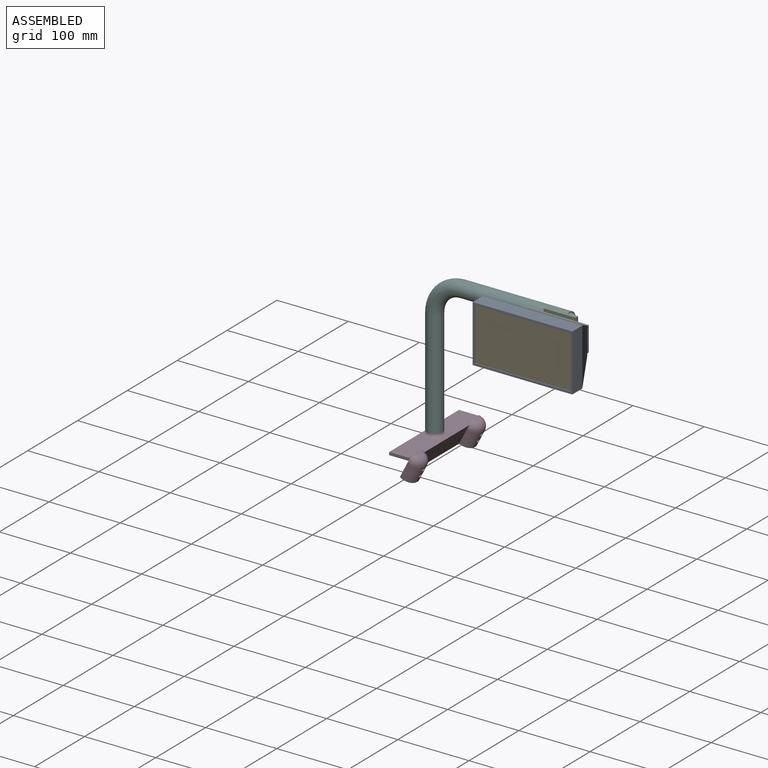
[diagram: assembled view]
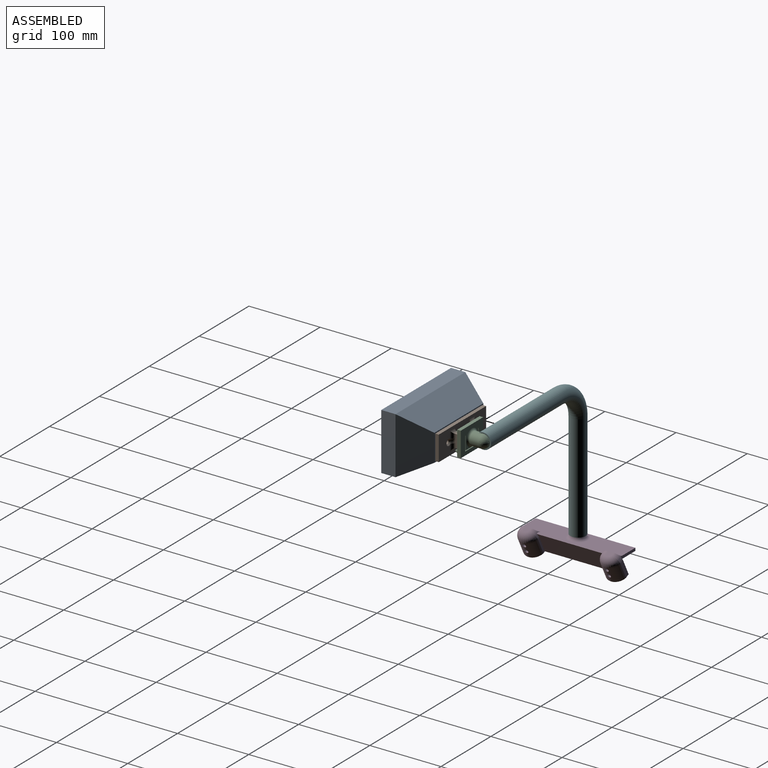
[diagram: assembled view, second angle]
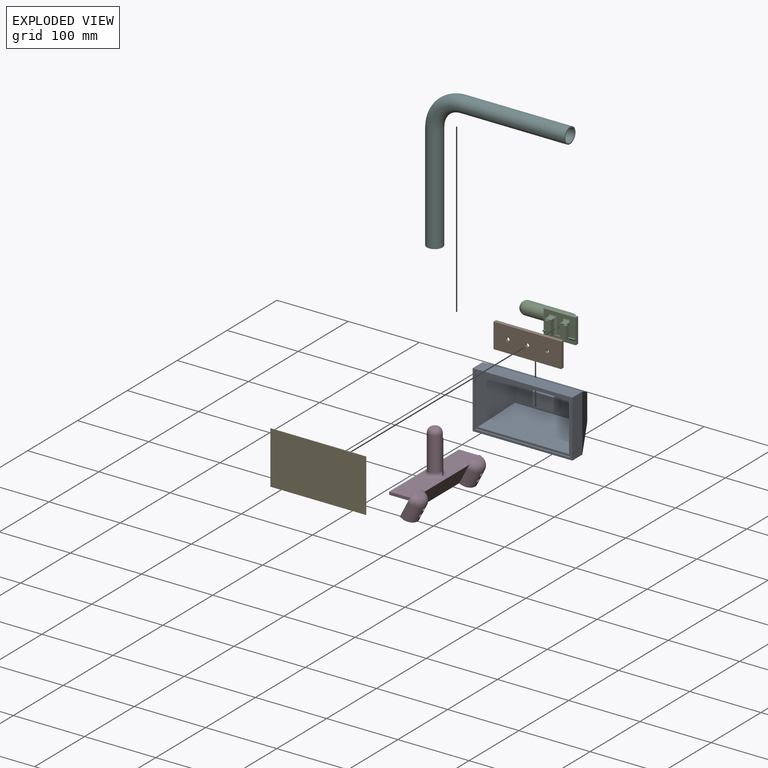
[diagram: exploded view]
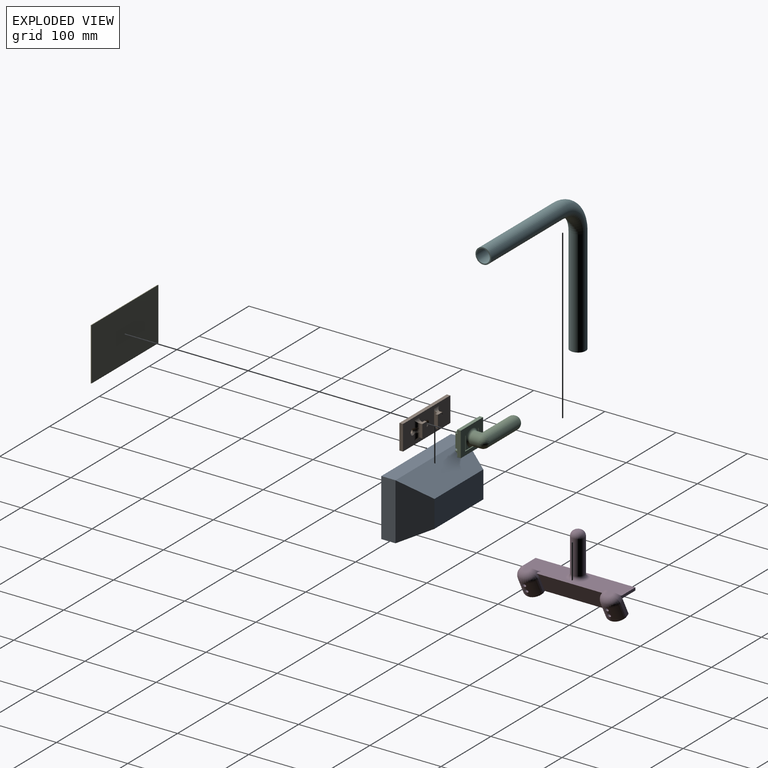
[diagram: exploded view, second angle]
ASSEMBLY  parts=6 mates=6
PART A: 25 faces, bbox 140x60x80 mm
  f0: plane 134x74mm, normal (0,-1,0), area 1212mm2, adj f11,f12,f13,f14,f16,f17,f18,f19
  f1: plane 140x80mm, normal (0,-1,0), area 1284mm2, adj f2,f3,f4,f5,f11,f12,f13,f14
  f2: plane 140x20mm, normal (0,0,-1), area 2800mm2, adj f1,f3,f5,f8
  f3: plane 80x20mm, normal (1,0,0), area 1600mm2, adj f1,f2,f4,f7
  f4: plane 140x20mm, normal (0,0,1), area 2800mm2, adj f1,f3,f5,f9
  f5: plane 80x20mm, normal (-1,0,0), area 1600mm2, adj f1,f2,f4,f10
  f6: plane 98x38mm, normal (0,1,0), area 3724mm2, adj f7,f8,f9,f10
  f7: plane 80x40mm, normal (0.89,0.46,0), area 2665.5mm2, adj f3,f6,f8,f9
  f8: plane 140x40mm, normal (0,0.46,-0.89), area 5376.1mm2, adj f2,f6,f7,f10
  f9: plane 140x40mm, normal (0,0.46,0.89), area 5376.1mm2, adj f4,f6,f7,f10
  f10: plane 80x40mm, normal (-0.89,0.46,0), area 2665.5mm2, adj f5,f6,f8,f9
  f11: plane 134x2mm, normal (0,0,1), area 268mm2, adj f0,f1,f12,f14
  f12: plane 74x2mm, normal (-1,0,0), area 148mm2, adj f0,f1,f11,f13
  f13: plane 134x2mm, normal (0,0,-1), area 268mm2, adj f0,f1,f12,f14
  f14: plane 74x2mm, normal (1,0,0), area 148mm2, adj f0,f1,f11,f13
  f15: plane 100x40mm, normal (0,-1,0), area 3400mm2, adj f16,f17,f18,f19,f20,f21,f22,f23
  f16: plane 128x54mm, normal (0,-0.25,0.97), area 6359.5mm2, adj f0,f15,f18,f19
  f17: plane 128x54mm, normal (0,-0.25,-0.97), area 6359.5mm2, adj f0,f15,f18,f19
  f18: plane 68x54mm, normal (-0.97,-0.25,0), area 3012.4mm2, adj f0,f15,f16,f17
  f19: plane 68x54mm, normal (0.97,-0.25,0), area 3012.4mm2, adj f0,f15,f16,f17
  f20: plane 30x15mm, normal (0,0,-1), area 450mm2, adj f15,f21,f23,f24
  f21: plane 20x15mm, normal (1,0,0), area 300mm2, adj f15,f20,f22,f24
  f22: plane 30x15mm, normal (0,0,1), area 450mm2, adj f15,f21,f23,f24
  f23: plane 20x15mm, normal (-1,0,0), area 300mm2, adj f15,f20,f22,f24
  f24: plane 30x20mm, normal (0,-1,0), area 600mm2, adj f20,f21,f22,f23
PART B: 36 faces, bbox 95x13x35 mm
  f0: plane 18x9mm, normal (0,-1,0), area 162mm2, adj f7,f9,f29,f31
  f1: plane 18x3.4mm, normal (1,0,0), area 61.2mm2, adj f4,f6,f28,f30
  f2: plane 27x4.6mm, normal (1,0,0), area 91.5mm2, adj f4,f12,f28,f30,f33,f35
  f3: plane 18x3.42mm, normal (-1,0,0), area 55.5mm2, adj f5,f6,f26,f27,f28,f30
  f4: plane 18x4mm, normal (0,1,0), area 72mm2, adj f1,f2,f28,f30
  f5: cylinder r=5mm len=9.76mm, axis (0,0,-1), area 53.4mm2, adj f3,f12,f27,f30,f33
  f6: plane 18x9mm, normal (0,-1,0), area 162mm2, adj f1,f3,f28,f30
  f7: plane 18x3.5mm, normal (-1,0,0), area 63mm2, adj f0,f10,f29,f31
  f8: plane 27x4.5mm, normal (-1,0,0), area 89.7mm2, adj f10,f12,f32,f34
  f9: plane 18x3.42mm, normal (1,0,0), area 55.5mm2, adj f0,f11,f24,f25,f29,f31
  f10: plane 18x4mm, normal (0,1,0), area 72mm2, adj f7,f8,f29,f31
  f11: cylinder r=5mm len=9.76mm, axis (0,0,1), area 53.4mm2, adj f9,f12,f25,f29,f34
  f12: plane 95x35mm, normal (0,-1,0), area 2615.2mm2, adj f2,f5,f8,f11,f13,f14,f15,f19
  f13: plane 35x5mm, normal (1,0,0), area 175mm2, adj f12,f14,f19,f20
  f14: plane 95x5mm, normal (0,0,1), area 475mm2, adj f12,f13,f15,f20
  f15: plane 35x5mm, normal (-1,0,0), area 175mm2, adj f12,f14,f19,f20
  f16: cylinder r=2.5mm len=5mm, axis (0,-1,0), area 47.1mm2, adj f20,f22
  f17: cylinder r=2.5mm len=5mm, axis (0,-1,0), area 47.1mm2, adj f20,f23
  f18: cylinder r=2.5mm len=5mm, axis (0,-1,0), area 47.1mm2, adj f20,f21
  f19: plane 95x5mm, normal (0,0,-1), area 475mm2, adj f12,f13,f15,f20
  f20: plane 95x35mm, normal (0,1,0), area 3266.1mm2, adj f13,f14,f15,f16,f17,f18,f19
  f21: cone r=2.5mm half-angle=45deg, axis (0,-1,0), area 62.2mm2, adj f12,f18
  f22: cone r=2.5mm half-angle=45deg, axis (0,-1,0), area 62.2mm2, adj f12,f16,f25
  f23: cone r=2.5mm half-angle=45deg, axis (0,-1,0), area 62.2mm2, adj f12,f17,f27
  f24: cylinder r=5mm len=9.76mm, axis (0,0,1), area 53.4mm2, adj f9,f12,f25,f31,f32
  f25: bspline ~8.33x5.21mm, area 48.4mm2, adj f9,f11,f22,f24
  f26: cylinder r=5mm len=9.76mm, axis (0,0,-1), area 53.4mm2, adj f3,f12,f27,f28,f35
  f27: bspline ~8.33x5.21mm, area 48.4mm2, adj f3,f5,f23,f26
  f28: plane 9.03x3.5mm, normal (0,0,1), area 31.1mm2, adj f1,f2,f3,f4,f6,f26,f35
  f29: plane 9.03x3.5mm, normal (0,0,1), area 31.5mm2, adj f0,f7,f9,f10,f11,f34
  f30: plane 9.03x3.5mm, normal (0,0,-1), area 31.1mm2, adj f1,f2,f3,f4,f5,f6,f33
  f31: plane 9.03x3.5mm, normal (0,0,-1), area 31.5mm2, adj f0,f7,f9,f10,f24,f32
  f32: cylinder r=4.5mm len=10mm, axis (1,0,0), area 48.9mm2, adj f8,f12,f24,f31
  f33: cylinder r=4.5mm len=10mm, axis (1,0,0), area 48.9mm2, adj f2,f5,f12,f30
  f34: cylinder r=4.5mm len=10mm, axis (-1,0,0), area 48.9mm2, adj f8,f11,f12,f29
  f35: cylinder r=4.5mm len=10mm, axis (-1,0,0), area 48.9mm2, adj f2,f12,f26,f28
PART C: 52 faces, bbox 91.7x38.2x35.1 mm
  f0: plane 45x35mm, normal (0,1,0), area 1055.3mm2, adj f9,f10,f11,f12,f15,f20,f21,f22
  f1: plane 21x8mm, normal (0,-1,0), area 162.4mm2, adj f2,f7,f15,f17,f19,f39,f40,f41
  f2: plane 8x5.1mm, normal (0,0,1), area 40.8mm2, adj f1,f17,f41,f50
  f3: plane 19x4mm, normal (1,0,0), area 76mm2, adj f4,f15,f16,f36
  f4: plane 19x4mm, normal (0,1,0), area 76mm2, adj f3,f8,f15,f36
  f5: plane 45x5.75mm, normal (0,-1,0), area 232.2mm2, adj f9,f10,f12,f20,f27,f28,f29,f30
  f6: plane 45x28.75mm, normal (0,-1,0), area 859.3mm2, adj f7,f8,f10,f11,f12,f15,f20,f21
  f7: plane 20.4x8.1mm, normal (-1,0,0), area 89.2mm2, adj f1,f6,f15,f18,f39,f40
  f8: plane 20.45x8.1mm, normal (1,0,0), area 89.6mm2, adj f4,f6,f15,f16,f36,f37
  f9: plane 45x5mm, normal (0,0,-1), area 225mm2, adj f0,f5,f10,f12
  f10: plane 35x8mm, normal (1,0,0), area 179.5mm2, adj f0,f5,f6,f9,f11,f33,f34
  f11: plane 45x5mm, normal (0,0,1), area 225mm2, adj f0,f6,f10,f12
  f12: plane 35x8mm, normal (-1,0,0), area 179.5mm2, adj f0,f5,f6,f9,f11,f31,f32,f35
  f13: plane 8x5.1mm, normal (0,0,1), area 40.8mm2, adj f14,f16,f38,f48
  f14: plane 21x5.1mm, normal (-1,0,0), area 107.1mm2, adj f13,f15,f16,f49
  f15: plane 29.09x13.19mm, normal (0,0,-1), area 220.7mm2, adj f0,f1,f3,f4,f6,f7,f8,f14
  f16: plane 21x8mm, normal (0,-1,0), area 162.2mm2, adj f3,f8,f13,f14,f15,f36,f37,f38
  f17: plane 21x5.1mm, normal (1,0,0), area 107.1mm2, adj f1,f2,f15,f51
  f18: plane 19x4mm, normal (0,1,0), area 76mm2, adj f7,f15,f19,f39
  f19: plane 19x4mm, normal (-1,0,0), area 76mm2, adj f1,f15,f18,f39
  f20: plane 19.73x8mm, normal (-1,0,0), area 99.5mm2, adj f0,f5,f6,f21,f30,f33,f34
  f21: cylinder r=0.5mm len=5mm, axis (0,-1,0), area 7.9mm2, adj f0,f6,f20,f22
  f22: plane 18x5mm, normal (1,0,0), area 90mm2, adj f0,f6,f21,f23
  f23: cylinder r=0.5mm len=5mm, axis (0,-1,0), area 3.9mm2, adj f0,f6,f15,f22
  f24: cylinder r=0.5mm len=5mm, axis (0,-1,0), area 3.9mm2, adj f0,f6,f15,f25
  f25: plane 18x5mm, normal (-1,0,0), area 90mm2, adj f0,f6,f24,f26
  f26: cylinder r=0.5mm len=5mm, axis (0,-1,0), area 7.9mm2, adj f0,f6,f25,f27
  f27: plane 19.74x8mm, normal (1,0,0), area 99.5mm2, adj f0,f5,f6,f26,f28,f31,f32,f35
  f28: cylinder r=0.5mm len=5mm, axis (0,-1,0), area 3.9mm2, adj f0,f5,f27,f29
  f29: plane 26x5mm, normal (0,0,1), area 130mm2, adj f0,f5,f28,f30
  f30: cylinder r=0.5mm len=5mm, axis (0,-1,0), area 3.9mm2, adj f0,f5,f20,f29
  f31: plane 9x3mm, normal (0,0,1), area 27mm2, adj f6,f12,f27,f32
  f32: plane 9x0.01mm, normal (0,-1,0), area 0.1mm2, adj f12,f27,f31,f35
  f33: plane 9x3mm, normal (0,0,1), area 27mm2, adj f6,f10,f20,f34
  f34: plane 9x3mm, normal (0,-0.71,-0.71), area 38.2mm2, adj f5,f10,f20,f33
  f35: plane 9x3mm, normal (0,-0.71,-0.71), area 38.2mm2, adj f5,f12,f27,f32
  f36: plane 4x4mm, normal (0,0,1), area 16mm2, adj f3,f4,f8,f16
  f37: plane 8.1x4mm, normal (0,0,-1), area 32.4mm2, adj f6,f8,f16,f38
  f38: plane 8.1x3.55mm, normal (1,0,0), area 6.4mm2, adj f6,f13,f16,f37,f48
  f39: plane 4x4mm, normal (0,0,1), area 16mm2, adj f1,f7,f18,f19
  f40: plane 8.1x4mm, normal (0,0,-1), area 32.4mm2, adj f1,f6,f7,f41
  f41: plane 8.1x3.6mm, normal (-1,0,0), area 6.8mm2, adj f1,f2,f6,f40,f50
  f42: sphere r=9.1mm, area 260.2mm2, adj f43,f44
  f43: cylinder r=9.1mm len=18.2mm, axis (0,-1,0), area 572.4mm2, adj f42,f44,f46,f47
  f44: cylinder r=9.1mm len=60mm, axis (1,0,0), area 3265mm2, adj f42,f43,f45
  f45: sphere r=9.1mm, area 520.3mm2, adj f44
  f46: torus R=12.1mm, axis (0,-1,0), area 265.5mm2, adj f0,f43,f47
  f47: bspline ~10.45x3.38mm, area 31.1mm2, adj f15,f43,f46
  f48: cylinder r=3mm len=11mm, axis (-1,0,0), area 42.8mm2, adj f6,f13,f38,f49
  f49: cylinder r=3mm len=24mm, axis (0,0,-1), area 104.1mm2, adj f6,f14,f15,f48
  f50: cylinder r=3mm len=11mm, axis (-1,0,0), area 42.8mm2, adj f2,f6,f41,f51
  f51: cylinder r=3mm len=24mm, axis (0,0,1), area 104.1mm2, adj f6,f15,f17,f50
PART D: 60 faces, bbox 144.3x63.1x77.7 mm
  f0: plane 144.1x28.36mm, normal (0,-1,0), area 2354.2mm2, adj f9,f10,f17,f20,f21,f22,f23,f38
  f1: plane 91.9x2.5mm, normal (0,0,1), area 229.8mm2, adj f7,f36,f39,f44
  f2: cylinder r=10.71mm len=20.1mm, axis (0,0,1), area 333.2mm2, adj f5,f16,f25,f28,f42
  f3: cylinder r=14.57mm len=28.1mm, axis (0,0,1), area 872mm2, adj f8,f9,f17,f24,f25,f40
  f4: plane 20.1x13.5mm, normal (0,1,0), area 252.7mm2, adj f5,f16,f23,f27,f42
  f5: plane 13.5x3mm, normal (1,0,0), area 40.5mm2, adj f2,f4,f26,f42
  f6: plane 24x3.28mm, normal (-1,0,0), area 78.7mm2, adj f7,f14,f17,f36
  f7: plane 91.9x30mm, normal (0,1,0), area 2644.6mm2, adj f1,f6,f8,f17,f36,f39
  f8: plane 24x3.28mm, normal (1,0,0), area 78.7mm2, adj f3,f7,f17,f39
  f9: plane 24x5.78mm, normal (-1,0,0), area 138.7mm2, adj f0,f3,f17,f41
  f10: plane 24x5.78mm, normal (1,0,0), area 138.7mm2, adj f0,f14,f17,f38
  f11: plane 20.1x13.5mm, normal (0,1,0), area 252.7mm2, adj f12,f15,f20,f31,f43
  f12: plane 13.5x3mm, normal (1,0,0), area 40.5mm2, adj f11,f13,f33,f43
  f13: cylinder r=10.71mm len=20.1mm, axis (0,0,1), area 333.2mm2, adj f12,f15,f18,f32,f43
  f14: cylinder r=14.57mm len=28.1mm, axis (0,0,1), area 872mm2, adj f6,f10,f17,f18,f19,f37
  f15: plane 13.5x3mm, normal (-1,0,0), area 40.5mm2, adj f11,f13,f30,f43
  f16: plane 13.5x3mm, normal (-1,0,0), area 40.5mm2, adj f2,f4,f29,f42
  f17: plane 144.1x16.5mm, normal (0,0,-1), area 576.3mm2, adj f0,f3,f6,f7,f8,f9,f10,f14
  f18: cylinder r=2.5mm len=5mm, axis (0,-1,0), area 63.5mm2, adj f13,f14,f32
  f19: cylinder r=2.5mm len=5mm, axis (0,-1,0), area 57.8mm2, adj f14,f32
  f20: cylinder r=2.5mm len=5mm, axis (0,-1,0), area 39.3mm2, adj f0,f11,f31
  f21: cylinder r=2.5mm len=5mm, axis (0,-1,0), area 33.7mm2, adj f0,f31
  f22: cylinder r=2.5mm len=5mm, axis (0,-1,0), area 33.7mm2, adj f0,f27
  f23: cylinder r=2.5mm len=5mm, axis (0,-1,0), area 39.3mm2, adj f0,f4,f27
  f24: cylinder r=2.5mm len=5mm, axis (0,-1,0), area 57.8mm2, adj f3,f28
  f25: cylinder r=2.5mm len=5mm, axis (0,-1,0), area 63.5mm2, adj f2,f3,f28
  f26: plane 18x3.94mm, normal (1,0,-0.04), area 62.5mm2, adj f5,f17,f27,f28
  f27: plane 21.74x18.04mm, normal (0,1,-0.04), area 355.9mm2, adj f4,f17,f22,f23,f26,f29
  f28: cone r=11.51mm half-angle=2.5deg, axis (0,0,-1), area 469.1mm2, adj f2,f17,f24,f25,f26,f29
  f29: plane 18x3.94mm, normal (-1,0,-0.04), area 62.5mm2, adj f16,f17,f27,f28
  f30: plane 18x3.94mm, normal (-1,0,-0.04), area 62.5mm2, adj f15,f17,f31,f32
  f31: plane 21.74x18.04mm, normal (0,1,-0.04), area 355.9mm2, adj f11,f17,f20,f21,f30,f33
  f32: cone r=10.71mm half-angle=2.5deg, axis (0,0,-1), area 469.1mm2, adj f13,f17,f18,f19,f30,f33
  f33: plane 18x3.94mm, normal (1,0,-0.04), area 62.5mm2, adj f12,f17,f31,f32
  f34: plane 8.1x6.5mm, normal (0,0,1), area 46.9mm2, adj f36,f37,f38,f53
  f35: plane 8.1x6.5mm, normal (0,0,1), area 46.9mm2, adj f39,f40,f41,f52
  f36: cylinder r=10mm len=10mm, axis (0,-1,0), area 69.9mm2, adj f1,f6,f7,f34,f37,f44,f53
  f37: torus R=4.57mm, axis (0,0,1), area 434.7mm2, adj f14,f34,f36,f38
  f38: cylinder r=10mm len=10mm, axis (0,1,0), area 85.2mm2, adj f0,f10,f34,f37,f47,f53,f58
  f39: cylinder r=10mm len=10mm, axis (0,-1,0), area 69.9mm2, adj f1,f7,f8,f35,f40,f44,f52
  f40: torus R=4.57mm, axis (0,0,1), area 434.7mm2, adj f3,f35,f39,f41
  f41: cylinder r=10mm len=10mm, axis (0,-1,0), area 85.2mm2, adj f0,f9,f35,f40,f48,f52,f57
  f42: plane 20.1x10mm, normal (0,0,-1), area 162.7mm2, adj f2,f4,f5,f16
  f43: plane 20.1x10mm, normal (0,0,-1), area 162.7mm2, adj f11,f12,f13,f15
  f44: plane 140.23x26.86mm, normal (0,-0.45,0.89), area 3357.8mm2, adj f1,f36,f39,f46,f47,f48,f52,f53
  f45: plane 142.31x25.13mm, normal (0,0.45,-0.89), area 2134.1mm2, adj f0,f46,f47,f48,f54,f55,f56,f57
  f46: plane 140.1x3.56mm, normal (0,-0.89,-0.45), area 560.4mm2, adj f44,f45,f47,f48
  f47: plane 25.73x17.18mm, normal (1,0,0), area 112.3mm2, adj f38,f44,f45,f46,f53,f58
  f48: plane 25.73x17.18mm, normal (-1,0,0), area 112.3mm2, adj f41,f44,f45,f46,f52,f57
  f49: cylinder r=9.2mm len=50.68mm, axis (0,0.45,-0.89), area 2745.8mm2, adj f51,f59
  f50: plane 3.4x3.03mm, normal (0,-0.45,0.89), area 9.1mm2, adj f51
  f51: torus R=1.7mm, axis (0,-0.45,0.89), area 479.3mm2, adj f49,f50
  f52: cylinder r=7mm len=25.24mm, axis (-1,0,0), area 160.6mm2, adj f35,f39,f41,f44,f48
  f53: cylinder r=7mm len=25.24mm, axis (-1,0,0), area 160.6mm2, adj f34,f36,f38,f44,f47
  f54: plane 100x15.89mm, normal (0,-0.26,-0.96), area 1648.2mm2, adj f0,f45,f55,f56
  f55: plane 15.89x12.46mm, normal (1,0,0), area 99mm2, adj f0,f45,f54
  f56: plane 15.89x12.46mm, normal (-1,0,0), area 99mm2, adj f0,f45,f54
  f57: cylinder r=1mm len=5mm, axis (0,0,1), area 6.6mm2, adj f0,f41,f45,f48
  f58: cylinder r=1mm len=5mm, axis (0,0,-1), area 6.6mm2, adj f0,f38,f45,f47
  f59: torus R=14.2mm, axis (0,0.45,-0.89), area 543.7mm2, adj f44,f49
PART E: 6 faces, bbox 134x1x74 mm
  f0: plane 134x1mm, normal (0,0,-1), area 134mm2, adj f1,f3,f4,f5
  f1: plane 74x1mm, normal (1,0,0), area 74mm2, adj f0,f2,f4,f5
  f2: plane 134x1mm, normal (0,0,1), area 134mm2, adj f1,f3,f4,f5
  f3: plane 74x1mm, normal (-1,0,0), area 74mm2, adj f0,f2,f4,f5
  f4: plane 134x74mm, normal (0,-1,0), area 9916mm2, adj f0,f1,f2,f3
  f5: plane 134x74mm, normal (0,1,0), area 9916mm2, adj f0,f1,f2,f3
PART F: 8 faces, bbox 22x205.2x205.2 mm
  f0: torus R=40mm, axis (-1,0,0), area 3671.5mm2, adj f2,f5
  f1: torus R=40mm, axis (-1,0,0), area 4342.6mm2, adj f3,f6
  f2: cylinder r=9.3mm len=150mm, axis (0,0,1), area 8765mm2, adj f0,f4
  f3: cylinder r=11mm len=150mm, axis (0,0,1), area 10367.3mm2, adj f1,f4
  f4: plane 22x22mm, normal (0,0,-1), area 108.4mm2, adj f2,f3
  f5: cylinder r=9.3mm len=150mm, axis (0,1,0), area 8765mm2, adj f0,f7
  f6: cylinder r=11mm len=150mm, axis (0,1,0), area 10367.3mm2, adj f1,f7
  f7: plane 22x22mm, normal (0,-1,0), area 108.4mm2, adj f5,f6
PLACE A rot(axis=(0,-1,0),180deg) t=(-15.14,-125.44,-90.44)mm
PLACE B rot(axis=(0,0,-1),180deg) t=(-15.14,-120.44,-90.44)mm
PLACE C rot(axis=(0,0,1),0deg) t=(-14.64,-106.74,-91.19)mm
PLACE D rot(axis=(-0.23,0.23,-0.95),93.1deg) t=(-187.41,-90.84,-287.32)mm
PLACE E rot(axis=(0,0,-1),180deg) t=(-15.14,-184.44,-90.44)mm
PLACE F rot(axis=(0,0,1),90deg) t=(-164.64,-90.84,-91.19)mm
MATE planar F.f5 <-> C.f44  axis (-1,0,0) through (-14.64,-90.84,-91.19)mm
MATE slider F.f5 <-> C.f44  axis (1,0,0) through (-14.64,-90.84,-91.19)mm
MATE fastened D.f51 <-> F.f2  axis (0,0,-1) through (-204.64,-90.84,-281.19)mm
MATE fastened B.f18 <-> A.f6  axis (0,-1,0) through (-15.14,-125.44,-90.44)mm
MATE slider C.f15 <-> B.f28  axis (0,0,-1) through (-2.14,-115.84,-102.44)mm
MATE fastened E.f4 <-> A.f0  axis (0,1,0) through (-15.14,-183.44,-53.44)mm
